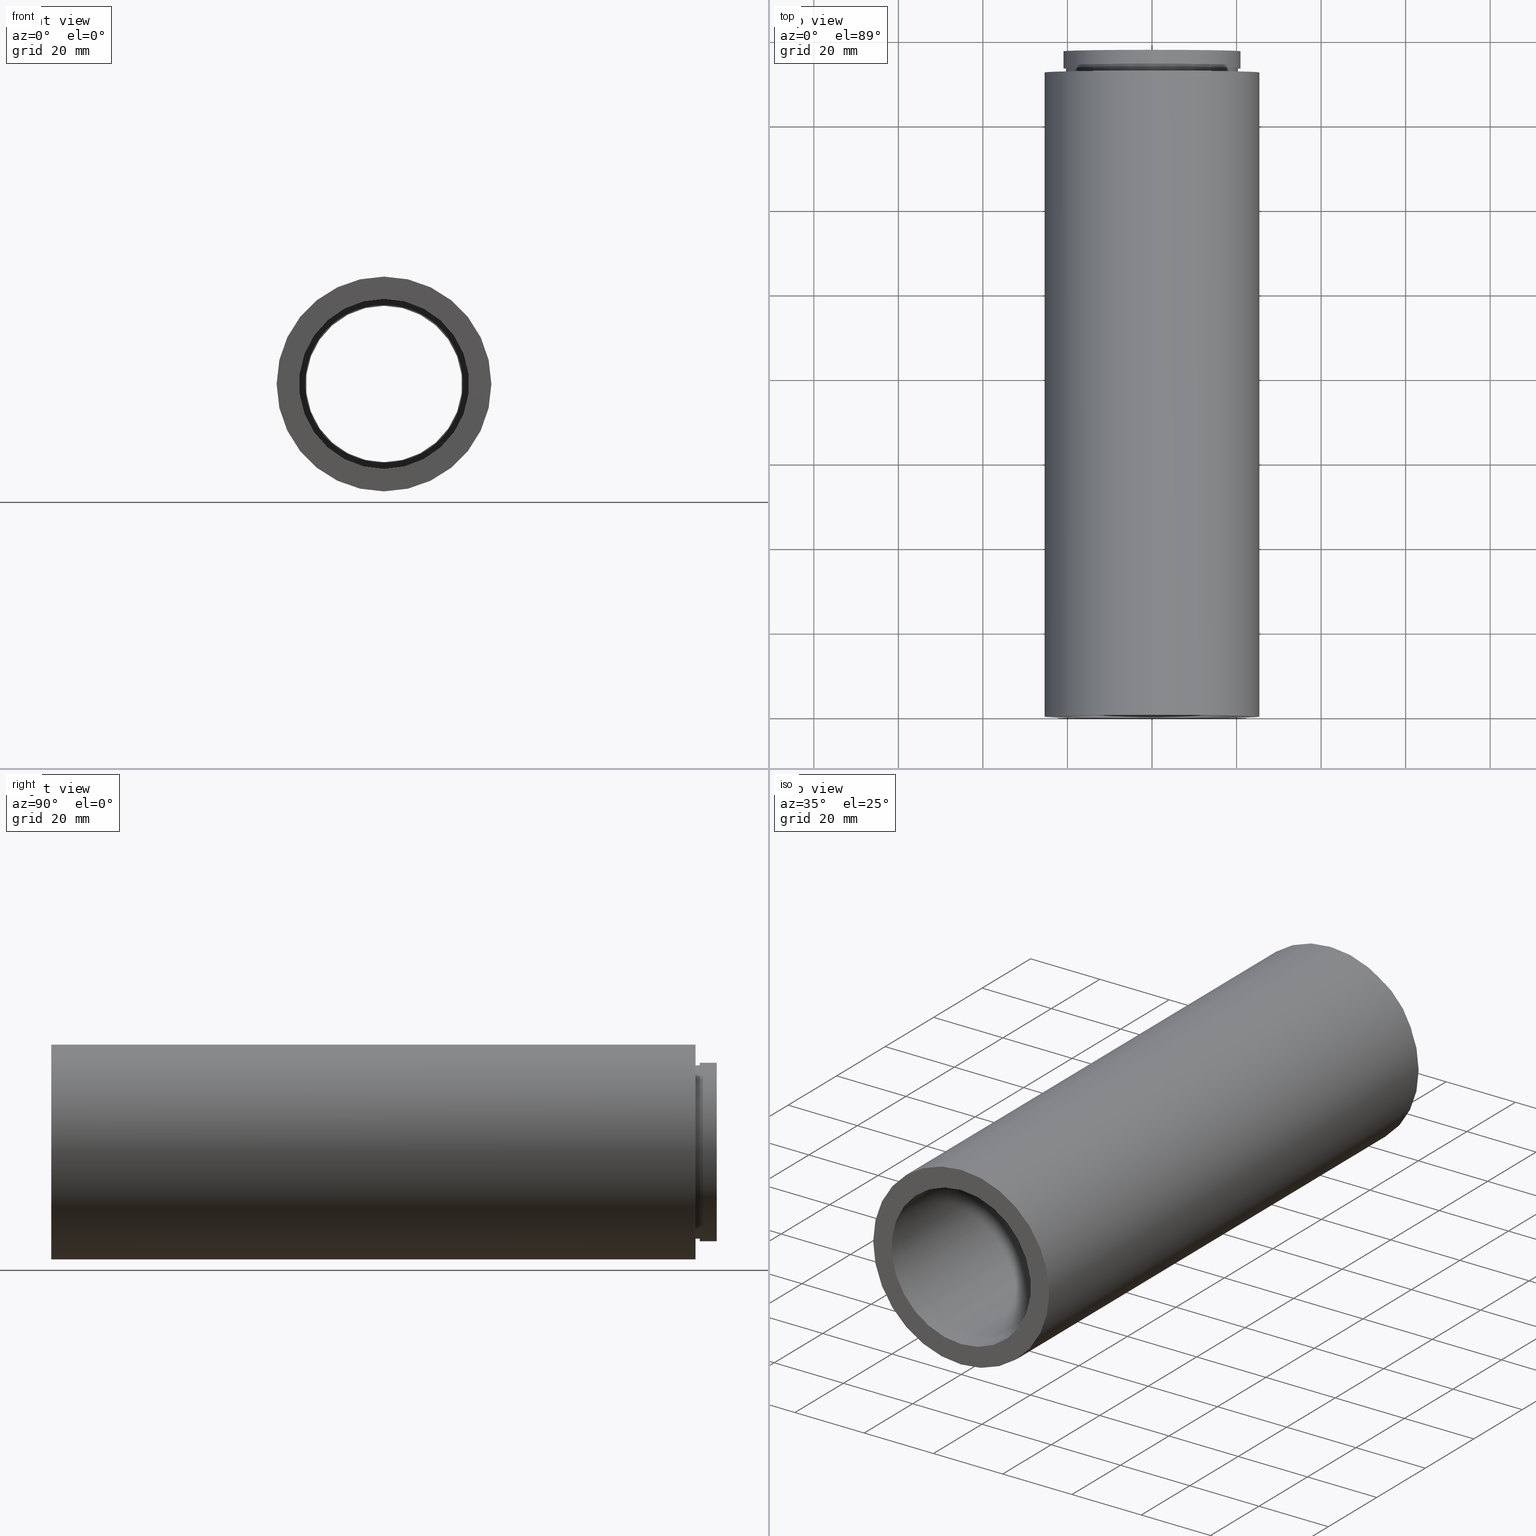
[diagram: canonical four-view strip — front | top / right | iso, engineering-drawing reading convention]
A machine part, canonical four-view strip (front | top / right | iso — engineering-drawing reading convention). The complete STEP part file that produces these views, byte-faithful:
ISO-10303-21;
HEADER;
FILE_DESCRIPTION (( 'STEP AP214' ),
    '1' );
FILE_NAME ('503100.STEP',
    '2019-09-12T01:57:37',
    ( '' ),
    ( '' ),
    'SwSTEP 2.0',
    'SolidWorks 2016',
    '' );
FILE_SCHEMA (( 'AUTOMOTIVE_DESIGN' ));
ENDSEC;

DATA;
#1 =( GEOMETRIC_REPRESENTATION_CONTEXT ( 3 ) GLOBAL_UNCERTAINTY_ASSIGNED_CONTEXT ( ( #450 ) ) GLOBAL_UNIT_ASSIGNED_CONTEXT ( ( #473, #335, #50 ) ) REPRESENTATION_CONTEXT ( 'NONE', 'WORKASPACE' ) );
#2 = EDGE_CURVE ( 'NONE', #559, #291, #601, .T. ) ;
#3 = ORIENTED_EDGE ( 'NONE', *, *, #431, .F. ) ;
#4 = LINE ( 'NONE', #400, #465 ) ;
#5 = APPLICATION_CONTEXT ( 'automotive_design' ) ;
#6 = DIRECTION ( 'NONE',  ( -0.0000000000000000000, 1.000000000000000000, -0.0000000000000000000 ) ) ;
#7 = CARTESIAN_POINT ( 'NONE',  ( 2.584004746200915400E-015, 150.3999999999999800, -21.10000000000000100 ) ) ;
#8 = VERTEX_POINT ( 'NONE', #394 ) ;
#9 = SURFACE_SIDE_STYLE ('',( #451 ) ) ;
#10 = LINE ( 'NONE', #553, #588 ) ;
#11 =( LENGTH_UNIT ( ) NAMED_UNIT ( * ) SI_UNIT ( .MILLI., .METRE. ) );
#12 = CIRCLE ( 'NONE', #461, 20.10000000000001900 ) ;
#13 = CARTESIAN_POINT ( 'NONE',  ( 0.0000000000000000000, 161.3761669434274500, 18.50000000000000000 ) ) ;
#14 = DIRECTION ( 'NONE',  ( 0.0000000000000000000, 0.0000000000000000000, 1.000000000000000000 ) ) ;
#15 = EDGE_CURVE ( 'NONE', #333, #559, #62, .T. ) ;
#16 = CARTESIAN_POINT ( 'NONE',  ( 20.10000000000001900, -1.489618060486579300E-014, 0.0000000000000000000 ) ) ;
#17 = UNCERTAINTY_MEASURE_WITH_UNIT (LENGTH_MEASURE( 1.000000000000000100E-005 ), #237, 'distance_accuracy_value', 'NONE');
#18 = VERTEX_POINT ( 'NONE', #23 ) ;
#19 = DIRECTION ( 'NONE',  ( -0.0000000000000000000, 1.000000000000000000, 0.0000000000000000000 ) ) ;
#20 = ORIENTED_EDGE ( 'NONE', *, *, #236, .T. ) ;
#21 = AXIS2_PLACEMENT_3D ( 'NONE', #410, #226, #97 ) ;
#22 = AXIS2_PLACEMENT_3D ( 'NONE', #146, #469, #193 ) ;
#23 = CARTESIAN_POINT ( 'NONE',  ( 2.461540066286182200E-015, 150.3999999999999800, -20.10000000000001900 ) ) ;
#24 = ORIENTED_EDGE ( 'NONE', *, *, #596, .T. ) ;
#25 = AXIS2_PLACEMENT_3D ( 'NONE', #338, #479, #200 ) ;
#26 = ADVANCED_FACE ( 'NONE', ( #122 ), #611, .T. ) ;
#27 = CIRCLE ( 'NONE', #31, 21.10000000000000100 ) ;
#28 = EDGE_LOOP ( 'NONE', ( #106, #170, #282, #354 ) ) ;
#29 = ADVANCED_FACE ( 'NONE', ( #472 ), #219, .F. ) ;
#30 = FACE_OUTER_BOUND ( 'NONE', #493, .T. ) ;
#31 = AXIS2_PLACEMENT_3D ( 'NONE', #577, #251, #253 ) ;
#32 = DIRECTION ( 'NONE',  ( 0.0000000000000000000, 0.0000000000000000000, 1.000000000000000000 ) ) ;
#33 = STYLED_ITEM ( 'NONE', ( #255 ), #544 ) ;
#34 = ORIENTED_EDGE ( 'NONE', *, *, #596, .F. ) ;
#35 = EDGE_CURVE ( 'NONE', #214, #241, #10, .T. ) ;
#36 = SURFACE_SIDE_STYLE ('',( #520 ) ) ;
#37 = ORIENTED_EDGE ( 'NONE', *, *, #69, .F. ) ;
#38 =( NAMED_UNIT ( * ) SI_UNIT ( $, .STERADIAN. ) SOLID_ANGLE_UNIT ( ) );
#39 = VERTEX_POINT ( 'NONE', #455 ) ;
#40 = LINE ( 'NONE', #153, #408 ) ;
#41 = DIRECTION ( 'NONE',  ( -0.0000000000000000000, 1.000000000000000000, -0.0000000000000000000 ) ) ;
#42 = DIRECTION ( 'NONE',  ( -0.0000000000000000000, 1.000000000000000000, -0.0000000000000000000 ) ) ;
#43 = PLANE ( 'NONE',  #217 ) ;
#44 = CARTESIAN_POINT ( 'NONE',  ( 0.0000000000000000000, -2.775557561562891400E-014, 0.0000000000000000000 ) ) ;
#45 = DIRECTION ( 'NONE',  ( -0.0000000000000000000, 1.000000000000000000, -0.0000000000000000000 ) ) ;
#46 = DIRECTION ( 'NONE',  ( 0.0000000000000000000, -1.000000000000000000, 0.0000000000000000000 ) ) ;
#47 = EDGE_CURVE ( 'NONE', #140, #119, #117, .T. ) ;
#48 = CARTESIAN_POINT ( 'NONE',  ( 0.0000000000000000000, 153.3999999999999800, 0.0000000000000000000 ) ) ;
#49 =( NAMED_UNIT ( * ) PLANE_ANGLE_UNIT ( ) SI_UNIT ( $, .RADIAN. ) );
#50 =( NAMED_UNIT ( * ) SI_UNIT ( $, .STERADIAN. ) SOLID_ANGLE_UNIT ( ) );
#51 = DIRECTION ( 'NONE',  ( -0.0000000000000000000, 1.000000000000000000, -0.0000000000000000000 ) ) ;
#52 = VERTEX_POINT ( 'NONE', #613 ) ;
#53 = DIRECTION ( 'NONE',  ( 0.0000000000000000000, 0.0000000000000000000, 1.000000000000000000 ) ) ;
#54 = COLOUR_RGB ( '',1.000000000000000000, 1.000000000000000000, 1.000000000000000000 ) ;
#55 = AXIS2_PLACEMENT_3D ( 'NONE', #476, #417, #522 ) ;
#56 = CARTESIAN_POINT ( 'NONE',  ( 0.0000000000000000000, 152.3999999999999800, 25.40000000000002000 ) ) ;
#57 = ORIENTED_EDGE ( 'NONE', *, *, #144, .T. ) ;
#58 = MECHANICAL_DESIGN_GEOMETRIC_PRESENTATION_REPRESENTATION (  '', ( #113 ), #411 ) ;
#59 = CYLINDRICAL_SURFACE ( 'NONE', #65, 21.10000000000000100 ) ;
#60 = LINE ( 'NONE', #477, #510 ) ;
#61 = DIRECTION ( 'NONE',  ( -0.0000000000000000000, 1.000000000000000000, -0.0000000000000000000 ) ) ;
#62 = LINE ( 'NONE', #492, #502 ) ;
#63 = UNCERTAINTY_MEASURE_WITH_UNIT (LENGTH_MEASURE( 1.000000000000000100E-005 ), #11, 'distance_accuracy_value', 'NONE');
#64 = DIRECTION ( 'NONE',  ( 0.0000000000000000000, 0.0000000000000000000, 1.000000000000000000 ) ) ;
#65 = AXIS2_PLACEMENT_3D ( 'NONE', #369, #91, #412 ) ;
#66 = CIRCLE ( 'NONE', #294, 21.10000000000000100 ) ;
#67 = DIRECTION ( 'NONE',  ( -0.0000000000000000000, 1.000000000000000000, -0.0000000000000000000 ) ) ;
#68 = PRESENTATION_LAYER_ASSIGNMENT (  '', '', ( #130 ) ) ;
#69 = EDGE_CURVE ( 'NONE', #8, #453, #129, .T. ) ;
#70 = ORIENTED_EDGE ( 'NONE', *, *, #143, .F. ) ;
#71 = CYLINDRICAL_SURFACE ( 'NONE', #441, 20.10000000000001900 ) ;
#72 = SURFACE_STYLE_FILL_AREA ( #264 ) ;
#73 = ORIENTED_EDGE ( 'NONE', *, *, #266, .F. ) ;
#74 = EDGE_LOOP ( 'NONE', ( #37, #202, #272, #257 ) ) ;
#75 = ADVANCED_FACE ( 'NONE', ( #440 ), #549, .T. ) ;
#76 = CIRCLE ( 'NONE', #158, 25.40000000000002000 ) ;
#77 = VECTOR ( 'NONE', #177, 1000.000000000000000 ) ;
#78 = ADVANCED_FACE ( 'NONE', ( #416 ), #409, .F. ) ;
#79 = AXIS2_PLACEMENT_3D ( 'NONE', #446, #174, #262 ) ;
#80 = FILL_AREA_STYLE ('',( #597 ) ) ;
#81 = DIRECTION ( 'NONE',  ( -0.0000000000000000000, 1.000000000000000000, -0.0000000000000000000 ) ) ;
#82 =( LENGTH_UNIT ( ) NAMED_UNIT ( * ) SI_UNIT ( .MILLI., .METRE. ) );
#83 = SURFACE_STYLE_USAGE ( .BOTH. , #36 ) ;
#84 = FACE_BOUND ( 'NONE', #171, .T. ) ;
#85 = CARTESIAN_POINT ( 'NONE',  ( 0.0000000000000000000, 161.3761669434274500, 0.0000000000000000000 ) ) ;
#86 = AXIS2_PLACEMENT_3D ( 'NONE', #232, #196, #152 ) ;
#87 = VERTEX_POINT ( 'NONE', #399 ) ;
#88 = CARTESIAN_POINT ( 'NONE',  ( 0.0000000000000000000, -2.775557561562891400E-014, 0.0000000000000000000 ) ) ;
#89 = FACE_OUTER_BOUND ( 'NONE', #504, .T. ) ;
#90 = ORIENTED_EDGE ( 'NONE', *, *, #389, .T. ) ;
#91 = DIRECTION ( 'NONE',  ( -0.0000000000000000000, 1.000000000000000000, -0.0000000000000000000 ) ) ;
#92 = ORIENTED_EDGE ( 'NONE', *, *, #144, .F. ) ;
#93 = AXIS2_PLACEMENT_3D ( 'NONE', #565, #460, #324 ) ;
#94 =( NAMED_UNIT ( * ) SI_UNIT ( $, .STERADIAN. ) SOLID_ANGLE_UNIT ( ) );
#95 = EDGE_LOOP ( 'NONE', ( #149, #386 ) ) ;
#96 = DIRECTION ( 'NONE',  ( -0.0000000000000000000, 1.000000000000000000, -0.0000000000000000000 ) ) ;
#97 = DIRECTION ( 'NONE',  ( 0.0000000000000000000, 0.0000000000000000000, 1.000000000000000000 ) ) ;
#98 = AXIS2_PLACEMENT_3D ( 'NONE', #533, #344, #296 ) ;
#99 = FILL_AREA_STYLE ('',( #337 ) ) ;
#100 = CARTESIAN_POINT ( 'NONE',  ( 0.0000000000000000000, 161.3761669434274500, 0.0000000000000000000 ) ) ;
#101 = ORIENTED_EDGE ( 'NONE', *, *, #2, .F. ) ;
#102 = APPLICATION_PROTOCOL_DEFINITION ( 'draft international standard', 'automotive_design', 1998, #580 ) ;
#103 = SHAPE_DEFINITION_REPRESENTATION ( #589, #235 ) ;
#104 = EDGE_CURVE ( 'NONE', #258, #609, #304, .T. ) ;
#105 = CARTESIAN_POINT ( 'NONE',  ( 0.0000000000000000000, 153.3999999999999800, 21.10000000000000100 ) ) ;
#106 = ORIENTED_EDGE ( 'NONE', *, *, #463, .T. ) ;
#107 = DIRECTION ( 'NONE',  ( 0.0000000000000000000, 0.0000000000000000000, 1.000000000000000000 ) ) ;
#108 = DIRECTION ( 'NONE',  ( -0.0000000000000000000, 1.000000000000000000, -0.0000000000000000000 ) ) ;
#109 = ORIENTED_EDGE ( 'NONE', *, *, #35, .F. ) ;
#110 = ORIENTED_EDGE ( 'NONE', *, *, #104, .T. ) ;
#111 = FILL_AREA_STYLE_COLOUR ( '', #545 ) ;
#112 = MANIFOLD_SOLID_BREP ( '��ת1', #351 ) ;
#113 = STYLED_ITEM ( 'NONE', ( #413 ), #218 ) ;
#114 = DIRECTION ( 'NONE',  ( 0.0000000000000000000, 0.0000000000000000000, 1.000000000000000000 ) ) ;
#115 = PRESENTATION_STYLE_ASSIGNMENT (( #518 ) ) ;
#116 = PLANE ( 'NONE',  #494 ) ;
#117 = CIRCLE ( 'NONE', #166, 18.50000000000000000 ) ;
#118 = ORIENTED_EDGE ( 'NONE', *, *, #300, .T. ) ;
#119 = VERTEX_POINT ( 'NONE', #310 ) ;
#120 = AXIS2_PLACEMENT_3D ( 'NONE', #334, #45, #283 ) ;
#121 = AXIS2_PLACEMENT_3D ( 'NONE', #378, #96, #619 ) ;
#122 = FACE_OUTER_BOUND ( 'NONE', #572, .T. ) ;
#123 = ADVANCED_FACE ( 'NONE', ( #329 ), #347, .F. ) ;
#124 = CARTESIAN_POINT ( 'NONE',  ( 2.510525938252074500E-015, 161.3761669434274500, -20.50000000000000400 ) ) ;
#125 = CIRCLE ( 'NONE', #318, 21.10000000000000100 ) ;
#126 = AXIS2_PLACEMENT_3D ( 'NONE', #267, #508, #406 ) ;
#127 = CYLINDRICAL_SURFACE ( 'NONE', #507, 25.40000000000002000 ) ;
#128 = SURFACE_SIDE_STYLE ('',( #578 ) ) ;
#129 = LINE ( 'NONE', #363, #77 ) ;
#130 = STYLED_ITEM ( 'NONE', ( #115 ), #235 ) ;
#131 = EDGE_CURVE ( 'NONE', #214, #223, #480, .T. ) ;
#132 = ORIENTED_EDGE ( 'NONE', *, *, #496, .T. ) ;
#133 = CARTESIAN_POINT ( 'NONE',  ( 0.0000000000000000000, 157.3999999999999800, 0.0000000000000000000 ) ) ;
#134 = ORIENTED_EDGE ( 'NONE', *, *, #487, .F. ) ;
#135 = ORIENTED_EDGE ( 'NONE', *, *, #535, .F. ) ;
#136 = PLANE ( 'NONE',  #252 ) ;
#137 = CARTESIAN_POINT ( 'NONE',  ( 0.0000000000000000000, 150.3999999999999800, 0.0000000000000000000 ) ) ;
#138 = FACE_OUTER_BOUND ( 'NONE', #215, .T. ) ;
#139 = CARTESIAN_POINT ( 'NONE',  ( 3.110602869834279600E-015, -2.775557561562891400E-014, -25.40000000000002000 ) ) ;
#140 = VERTEX_POINT ( 'NONE', #414 ) ;
#141 =( NAMED_UNIT ( * ) SI_UNIT ( $, .STERADIAN. ) SOLID_ANGLE_UNIT ( ) );
#142 = CARTESIAN_POINT ( 'NONE',  ( 0.0000000000000000000, 151.3999999999999800, 0.0000000000000000000 ) ) ;
#143 = EDGE_CURVE ( 'NONE', #39, #140, #395, .T. ) ;
#144 = EDGE_CURVE ( 'NONE', #468, #333, #173, .T. ) ;
#145 = CIRCLE ( 'NONE', #586, 21.10000000000000100 ) ;
#146 = CARTESIAN_POINT ( 'NONE',  ( 0.0000000000000000000, 0.0000000000000000000, 0.0000000000000000000 ) ) ;
#147 = DIRECTION ( 'NONE',  ( 0.0000000000000000000, 0.0000000000000000000, 1.000000000000000000 ) ) ;
#148 = CARTESIAN_POINT ( 'NONE',  ( 0.0000000000000000000, 150.3999999999999800, 0.0000000000000000000 ) ) ;
#149 = ORIENTED_EDGE ( 'NONE', *, *, #463, .F. ) ;
#150 = CARTESIAN_POINT ( 'NONE',  ( 0.0000000000000000000, 152.3999999999999800, 20.50000000000000400 ) ) ;
#151 = ORIENTED_EDGE ( 'NONE', *, *, #104, .F. ) ;
#152 = DIRECTION ( 'NONE',  ( 0.0000000000000000000, 0.0000000000000000000, 1.000000000000000000 ) ) ;
#153 = CARTESIAN_POINT ( 'NONE',  ( 0.0000000000000000000, 161.3761669434274500, 20.10000000000001900 ) ) ;
#154 = VERTEX_POINT ( 'NONE', #276 ) ;
#155 = PRODUCT_CONTEXT ( 'NONE', #580, 'mechanical' ) ;
#156 = FACE_OUTER_BOUND ( 'NONE', #270, .T. ) ;
#157 = CARTESIAN_POINT ( 'NONE',  ( 0.0000000000000000000, -2.775557561562891400E-014, 25.40000000000002000 ) ) ;
#158 = AXIS2_PLACEMENT_3D ( 'NONE', #621, #284, #421 ) ;
#159 = FILL_AREA_STYLE ('',( #111 ) ) ;
#160 = ORIENTED_EDGE ( 'NONE', *, *, #236, .F. ) ;
#161 =( NAMED_UNIT ( * ) PLANE_ANGLE_UNIT ( ) SI_UNIT ( $, .RADIAN. ) );
#162 = FACE_OUTER_BOUND ( 'NONE', #353, .T. ) ;
#163 = PRESENTATION_STYLE_ASSIGNMENT (( #183 ) ) ;
#164 = SURFACE_SIDE_STYLE ('',( #342 ) ) ;
#165 = DIRECTION ( 'NONE',  ( 0.0000000000000000000, -1.000000000000000000, 0.0000000000000000000 ) ) ;
#166 = AXIS2_PLACEMENT_3D ( 'NONE', #133, #556, #457 ) ;
#167 = EDGE_LOOP ( 'NONE', ( #110, #198 ) ) ;
#168 = PRODUCT_DEFINITION ( 'δ֪', '', #594, #229 ) ;
#169 = EDGE_CURVE ( 'NONE', #425, #583, #192, .T. ) ;
#170 = ORIENTED_EDGE ( 'NONE', *, *, #69, .T. ) ;
#171 = EDGE_LOOP ( 'NONE', ( #180, #439 ) ) ;
#172 = ADVANCED_FACE ( 'NONE', ( #620, #89 ), #326, .F. ) ;
#173 = CIRCLE ( 'NONE', #385, 25.40000000000002000 ) ;
#174 = DIRECTION ( 'NONE',  ( -0.0000000000000000000, 1.000000000000000000, -0.0000000000000000000 ) ) ;
#175 = ADVANCED_FACE ( 'NONE', ( #138 ), #59, .F. ) ;
#176 = EDGE_CURVE ( 'NONE', #52, #587, #443, .T. ) ;
#177 = DIRECTION ( 'NONE',  ( -0.0000000000000000000, 1.000000000000000000, -0.0000000000000000000 ) ) ;
#178 =( LENGTH_UNIT ( ) NAMED_UNIT ( * ) SI_UNIT ( .MILLI., .METRE. ) );
#179 = DIRECTION ( 'NONE',  ( 0.0000000000000000000, 0.0000000000000000000, 1.000000000000000000 ) ) ;
#180 = ORIENTED_EDGE ( 'NONE', *, *, #535, .T. ) ;
#181 = FILL_AREA_STYLE_COLOUR ( '', #54 ) ;
#182 = PRESENTATION_STYLE_ASSIGNMENT (( #616 ) ) ;
#183 = SURFACE_STYLE_USAGE ( .BOTH. , #128 ) ;
#184 = VECTOR ( 'NONE', #497, 1000.000000000000000 ) ;
#185 = PRESENTATION_LAYER_ASSIGNMENT (  '', '', ( #397 ) ) ;
#186 = DIRECTION ( 'NONE',  ( -0.0000000000000000000, 1.000000000000000000, -0.0000000000000000000 ) ) ;
#187 = DIRECTION ( 'NONE',  ( -0.0000000000000000000, 1.000000000000000000, -0.0000000000000000000 ) ) ;
#188 = VECTOR ( 'NONE', #108, 1000.000000000000000 ) ;
#189 = COLOUR_RGB ( '',1.000000000000000000, 1.000000000000000000, 1.000000000000000000 ) ;
#190 = DIRECTION ( 'NONE',  ( 0.0000000000000000000, -0.0000000000000000000, -1.000000000000000000 ) ) ;
#191 = PRESENTATION_LAYER_ASSIGNMENT (  '', '', ( #327 ) ) ;
#192 = LINE ( 'NONE', #562, #220 ) ;
#193 = DIRECTION ( 'NONE',  ( 1.000000000000000000, 0.0000000000000000000, 0.0000000000000000000 ) ) ;
#194 = DIRECTION ( 'NONE',  ( 0.0000000000000000000, 0.0000000000000000000, 1.000000000000000000 ) ) ;
#195 = AXIS2_PLACEMENT_3D ( 'NONE', #243, #6, #328 ) ;
#196 = DIRECTION ( 'NONE',  ( -0.0000000000000000000, 1.000000000000000000, -0.0000000000000000000 ) ) ;
#197 = DIRECTION ( 'NONE',  ( -0.0000000000000000000, 1.000000000000000000, -0.0000000000000000000 ) ) ;
#198 = ORIENTED_EDGE ( 'NONE', *, *, #607, .T. ) ;
#199 = DIRECTION ( 'NONE',  ( -0.0000000000000000000, 1.000000000000000000, -0.0000000000000000000 ) ) ;
#200 = DIRECTION ( 'NONE',  ( 0.0000000000000000000, 0.0000000000000000000, 1.000000000000000000 ) ) ;
#201 = CARTESIAN_POINT ( 'NONE',  ( 0.0000000000000000000, 161.3761669434274500, 0.0000000000000000000 ) ) ;
#202 = ORIENTED_EDGE ( 'NONE', *, *, #567, .T. ) ;
#203 = ORIENTED_EDGE ( 'NONE', *, *, #332, .F. ) ;
#204 = ORIENTED_EDGE ( 'NONE', *, *, #234, .F. ) ;
#205 = LINE ( 'NONE', #424, #188 ) ;
#206 =( NAMED_UNIT ( * ) SI_UNIT ( $, .STERADIAN. ) SOLID_ANGLE_UNIT ( ) );
#207 = CARTESIAN_POINT ( 'NONE',  ( 3.110602869834279600E-015, 152.3999999999999800, -25.40000000000002000 ) ) ;
#208 = EDGE_CURVE ( 'NONE', #583, #453, #27, .T. ) ;
#209 = EDGE_CURVE ( 'NONE', #341, #248, #225, .T. ) ;
#210 = CARTESIAN_POINT ( 'NONE',  ( 0.0000000000000000000, 157.3999999999999800, 0.0000000000000000000 ) ) ;
#211 = PRESENTATION_STYLE_ASSIGNMENT (( #83 ) ) ;
#212 = ORIENTED_EDGE ( 'NONE', *, *, #234, .T. ) ;
#213 = LINE ( 'NONE', #349, #490 ) ;
#214 = VERTEX_POINT ( 'NONE', #7 ) ;
#215 = EDGE_LOOP ( 'NONE', ( #109, #527, #584, #560 ) ) ;
#216 = DIRECTION ( 'NONE',  ( -0.0000000000000000000, 1.000000000000000000, -0.0000000000000000000 ) ) ;
#217 = AXIS2_PLACEMENT_3D ( 'NONE', #624, #571, #147 ) ;
#218 = ADVANCED_FACE ( 'NONE', ( #295 ), #372, .T. ) ;
#219 = CYLINDRICAL_SURFACE ( 'NONE', #574, 20.10000000000001900 ) ;
#220 = VECTOR ( 'NONE', #513, 1000.000000000000000 ) ;
#221 = MECHANICAL_DESIGN_GEOMETRIC_PRESENTATION_REPRESENTATION (  '', ( #327 ), #437 ) ;
#222 = CIRCLE ( 'NONE', #93, 21.10000000000000100 ) ;
#223 = VERTEX_POINT ( 'NONE', #376 ) ;
#224 =( NAMED_UNIT ( * ) SI_UNIT ( $, .STERADIAN. ) SOLID_ANGLE_UNIT ( ) );
#225 = CIRCLE ( 'NONE', #98, 20.50000000000000400 ) ;
#226 = DIRECTION ( 'NONE',  ( -0.0000000000000000000, 1.000000000000000000, -0.0000000000000000000 ) ) ;
#227 = ORIENTED_EDGE ( 'NONE', *, *, #47, .F. ) ;
#228 =( LENGTH_UNIT ( ) NAMED_UNIT ( * ) SI_UNIT ( .MILLI., .METRE. ) );
#229 = PRODUCT_DEFINITION_CONTEXT ( 'detailed design', #5, 'design' ) ;
#230 = DIRECTION ( 'NONE',  ( -0.0000000000000000000, 1.000000000000000000, -0.0000000000000000000 ) ) ;
#231 = FACE_OUTER_BOUND ( 'NONE', #95, .T. ) ;
#232 = CARTESIAN_POINT ( 'NONE',  ( 0.0000000000000000000, 161.3761669434274500, 0.0000000000000000000 ) ) ;
#233 = DIRECTION ( 'NONE',  ( 0.0000000000000000000, 0.0000000000000000000, 1.000000000000000000 ) ) ;
#234 = EDGE_CURVE ( 'NONE', #119, #140, #592, .T. ) ;
#235 = ADVANCED_BREP_SHAPE_REPRESENTATION ( '503100', ( #112, #22 ), #579 ) ;
#236 = EDGE_CURVE ( 'NONE', #18, #87, #12, .T. ) ;
#237 =( LENGTH_UNIT ( ) NAMED_UNIT ( * ) SI_UNIT ( .MILLI., .METRE. ) );
#238 = CIRCLE ( 'NONE', #541, 18.50000000000000000 ) ;
#239 = SURFACE_STYLE_USAGE ( .BOTH. , #287 ) ;
#240 = DIRECTION ( 'NONE',  ( -0.0000000000000000000, 1.000000000000000000, -0.0000000000000000000 ) ) ;
#241 = VERTEX_POINT ( 'NONE', #530 ) ;
#242 =( NAMED_UNIT ( * ) PLANE_ANGLE_UNIT ( ) SI_UNIT ( $, .RADIAN. ) );
#243 = CARTESIAN_POINT ( 'NONE',  ( 0.0000000000000000000, 153.3999999999999800, 0.0000000000000000000 ) ) ;
#244 = COLOUR_RGB ( '',1.000000000000000000, 1.000000000000000000, 1.000000000000000000 ) ;
#245 = ORIENTED_EDGE ( 'NONE', *, *, #176, .T. ) ;
#246 = CARTESIAN_POINT ( 'NONE',  ( 0.0000000000000000000, -2.775557561562891400E-014, 20.10000000000001900 ) ) ;
#247 = MECHANICAL_DESIGN_GEOMETRIC_PRESENTATION_REPRESENTATION (  '', ( #33 ), #1 ) ;
#248 = VERTEX_POINT ( 'NONE', #150 ) ;
#249 = DIRECTION ( 'NONE',  ( -0.0000000000000000000, 1.000000000000000000, -0.0000000000000000000 ) ) ;
#250 = COLOUR_RGB ( '',1.000000000000000000, 1.000000000000000000, 1.000000000000000000 ) ;
#251 = DIRECTION ( 'NONE',  ( -0.0000000000000000000, 1.000000000000000000, -0.0000000000000000000 ) ) ;
#252 = AXIS2_PLACEMENT_3D ( 'NONE', #418, #46, #290 ) ;
#253 = DIRECTION ( 'NONE',  ( 0.0000000000000000000, 0.0000000000000000000, 1.000000000000000000 ) ) ;
#254 = VECTOR ( 'NONE', #61, 1000.000000000000000 ) ;
#255 = PRESENTATION_STYLE_ASSIGNMENT (( #239 ) ) ;
#256 = MECHANICAL_DESIGN_GEOMETRIC_PRESENTATION_REPRESENTATION (  '', ( #298 ), #539 ) ;
#257 = ORIENTED_EDGE ( 'NONE', *, *, #301, .F. ) ;
#258 = VERTEX_POINT ( 'NONE', #246 ) ;
#259 = AXIS2_PLACEMENT_3D ( 'NONE', #278, #186, #470 ) ;
#260 = ORIENTED_EDGE ( 'NONE', *, *, #452, .T. ) ;
#261 = UNCERTAINTY_MEASURE_WITH_UNIT (LENGTH_MEASURE( 1.000000000000000100E-005 ), #228, 'distance_accuracy_value', 'NONE');
#262 = DIRECTION ( 'NONE',  ( 0.0000000000000000000, 0.0000000000000000000, 1.000000000000000000 ) ) ;
#263 = ADVANCED_FACE ( 'NONE', ( #305, #383 ), #384, .F. ) ;
#264 = FILL_AREA_STYLE ('',( #181 ) ) ;
#265 = EDGE_LOOP ( 'NONE', ( #319, #445, #506, #509 ) ) ;
#266 = EDGE_CURVE ( 'NONE', #248, #341, #435, .T. ) ;
#267 = CARTESIAN_POINT ( 'NONE',  ( 0.0000000000000000000, 161.3761669434274500, 0.0000000000000000000 ) ) ;
#268 = FILL_AREA_STYLE_COLOUR ( '', #244 ) ;
#269 = SURFACE_SIDE_STYLE ('',( #617 ) ) ;
#270 = EDGE_LOOP ( 'NONE', ( #203, #356 ) ) ;
#271 = DIRECTION ( 'NONE',  ( -0.0000000000000000000, 1.000000000000000000, -0.0000000000000000000 ) ) ;
#272 = ORIENTED_EDGE ( 'NONE', *, *, #169, .T. ) ;
#273 =( LENGTH_UNIT ( ) NAMED_UNIT ( * ) SI_UNIT ( .MILLI., .METRE. ) );
#274 = EDGE_LOOP ( 'NONE', ( #260, #391 ) ) ;
#275 = SURFACE_STYLE_FILL_AREA ( #330 ) ;
#276 = CARTESIAN_POINT ( 'NONE',  ( 0.0000000000000000000, 151.3999999999999800, 21.10000000000000100 ) ) ;
#277 = AXIS2_PLACEMENT_3D ( 'NONE', #142, #523, #373 ) ;
#278 = CARTESIAN_POINT ( 'NONE',  ( 0.0000000000000000000, 150.3999999999999800, 0.0000000000000000000 ) ) ;
#279 = DIRECTION ( 'NONE',  ( 0.0000000000000000000, 0.0000000000000000000, 1.000000000000000000 ) ) ;
#280 = ORIENTED_EDGE ( 'NONE', *, *, #208, .T. ) ;
#281 = CIRCLE ( 'NONE', #277, 18.50000000000000000 ) ;
#282 = ORIENTED_EDGE ( 'NONE', *, *, #208, .F. ) ;
#283 = DIRECTION ( 'NONE',  ( 0.0000000000000000000, 0.0000000000000000000, 1.000000000000000000 ) ) ;
#284 = DIRECTION ( 'NONE',  ( -0.0000000000000000000, 1.000000000000000000, -0.0000000000000000000 ) ) ;
#285 = AXIS2_PLACEMENT_3D ( 'NONE', #550, #505, #367 ) ;
#286 = SURFACE_SIDE_STYLE ('',( #361 ) ) ;
#287 = SURFACE_SIDE_STYLE ('',( #275 ) ) ;
#288 = ORIENTED_EDGE ( 'NONE', *, *, #15, .T. ) ;
#289 = AXIS2_PLACEMENT_3D ( 'NONE', #570, #339, #107 ) ;
#290 = DIRECTION ( 'NONE',  ( 0.0000000000000000000, -0.0000000000000000000, -1.000000000000000000 ) ) ;
#291 = VERTEX_POINT ( 'NONE', #207 ) ;
#292 =( NAMED_UNIT ( * ) SI_UNIT ( $, .STERADIAN. ) SOLID_ANGLE_UNIT ( ) );
#293 = CIRCLE ( 'NONE', #195, 21.10000000000000100 ) ;
#294 = AXIS2_PLACEMENT_3D ( 'NONE', #297, #381, #14 ) ;
#295 = FACE_OUTER_BOUND ( 'NONE', #28, .T. ) ;
#296 = DIRECTION ( 'NONE',  ( 0.0000000000000000000, 0.0000000000000000000, 1.000000000000000000 ) ) ;
#297 = CARTESIAN_POINT ( 'NONE',  ( 0.0000000000000000000, 151.3999999999999800, 0.0000000000000000000 ) ) ;
#298 = STYLED_ITEM ( 'NONE', ( #182 ), #112 ) ;
#299 = DIRECTION ( 'NONE',  ( -0.0000000000000000000, 1.000000000000000000, -0.0000000000000000000 ) ) ;
#300 = EDGE_CURVE ( 'NONE', #573, #119, #599, .T. ) ;
#301 = EDGE_CURVE ( 'NONE', #453, #583, #125, .T. ) ;
#302 = ORIENTED_EDGE ( 'NONE', *, *, #359, .T. ) ;
#303 = CIRCLE ( 'NONE', #121, 25.40000000000002000 ) ;
#304 = CIRCLE ( 'NONE', #485, 20.10000000000001900 ) ;
#305 = FACE_OUTER_BOUND ( 'NONE', #557, .T. ) ;
#306 = ADVANCED_FACE ( 'NONE', ( #231, #458 ), #538, .F. ) ;
#307 = AXIS2_PLACEMENT_3D ( 'NONE', #16, #348, #346 ) ;
#308 = CYLINDRICAL_SURFACE ( 'NONE', #55, 20.50000000000000400 ) ;
#309 = ADVANCED_FACE ( 'NONE', ( #312, #321 ), #116, .F. ) ;
#310 = CARTESIAN_POINT ( 'NONE',  ( 0.0000000000000000000, 157.3999999999999800, 18.50000000000000000 ) ) ;
#311 =( NAMED_UNIT ( * ) PLANE_ANGLE_UNIT ( ) SI_UNIT ( $, .RADIAN. ) );
#312 = FACE_BOUND ( 'NONE', #315, .T. ) ;
#313 = PRESENTATION_LAYER_ASSIGNMENT (  '', '', ( #415 ) ) ;
#314 = CARTESIAN_POINT ( 'NONE',  ( 0.0000000000000000000, 161.3761669434274500, 0.0000000000000000000 ) ) ;
#315 = EDGE_LOOP ( 'NONE', ( #204, #227 ) ) ;
#316 = MECHANICAL_DESIGN_GEOMETRIC_PRESENTATION_REPRESENTATION (  '', ( #130 ), #475 ) ;
#317 = FILL_AREA_STYLE_COLOUR ( '', #564 ) ;
#318 = AXIS2_PLACEMENT_3D ( 'NONE', #210, #67, #390 ) ;
#319 = ORIENTED_EDGE ( 'NONE', *, *, #131, .F. ) ;
#320 =( NAMED_UNIT ( * ) PLANE_ANGLE_UNIT ( ) SI_UNIT ( $, .RADIAN. ) );
#321 = FACE_OUTER_BOUND ( 'NONE', #516, .T. ) ;
#322 = ORIENTED_EDGE ( 'NONE', *, *, #496, .F. ) ;
#323 = ORIENTED_EDGE ( 'NONE', *, *, #301, .T. ) ;
#324 = DIRECTION ( 'NONE',  ( 0.0000000000000000000, 0.0000000000000000000, 1.000000000000000000 ) ) ;
#325 = UNCERTAINTY_MEASURE_WITH_UNIT (LENGTH_MEASURE( 1.000000000000000100E-005 ), #590, 'distance_accuracy_value', 'NONE');
#326 = PLANE ( 'NONE',  #591 ) ;
#327 = STYLED_ITEM ( 'NONE', ( #211 ), #78 ) ;
#328 = DIRECTION ( 'NONE',  ( 0.0000000000000000000, 0.0000000000000000000, 1.000000000000000000 ) ) ;
#329 = FACE_OUTER_BOUND ( 'NONE', #265, .T. ) ;
#330 = FILL_AREA_STYLE ('',( #576 ) ) ;
#331 = EDGE_CURVE ( 'NONE', #609, #18, #213, .T. ) ;
#332 = EDGE_CURVE ( 'NONE', #154, #241, #66, .T. ) ;
#333 = VERTEX_POINT ( 'NONE', #157 ) ;
#334 = CARTESIAN_POINT ( 'NONE',  ( 0.0000000000000000000, -2.775557561562891400E-014, 0.0000000000000000000 ) ) ;
#335 =( NAMED_UNIT ( * ) PLANE_ANGLE_UNIT ( ) SI_UNIT ( $, .RADIAN. ) );
#336 = CARTESIAN_POINT ( 'NONE',  ( 0.0000000000000000000, 161.3761669434274500, 0.0000000000000000000 ) ) ;
#337 = FILL_AREA_STYLE_COLOUR ( '', #536 ) ;
#338 = CARTESIAN_POINT ( 'NONE',  ( 0.0000000000000000000, 157.3999999999999800, 0.0000000000000000000 ) ) ;
#339 = DIRECTION ( 'NONE',  ( -0.0000000000000000000, 1.000000000000000000, -0.0000000000000000000 ) ) ;
#340 = DIRECTION ( 'NONE',  ( 0.0000000000000000000, 0.0000000000000000000, 1.000000000000000000 ) ) ;
#341 = VERTEX_POINT ( 'NONE', #434 ) ;
#342 = SURFACE_STYLE_FILL_AREA ( #548 ) ;
#343 = EDGE_LOOP ( 'NONE', ( #73, #377 ) ) ;
#344 = DIRECTION ( 'NONE',  ( -0.0000000000000000000, 1.000000000000000000, -0.0000000000000000000 ) ) ;
#345 = PRESENTATION_LAYER_ASSIGNMENT (  '', '', ( #113 ) ) ;
#346 = DIRECTION ( 'NONE',  ( 0.0000000000000000000, 0.0000000000000000000, 1.000000000000000000 ) ) ;
#347 = CYLINDRICAL_SURFACE ( 'NONE', #21, 21.10000000000000100 ) ;
#348 = DIRECTION ( 'NONE',  ( -0.0000000000000000000, 1.000000000000000000, 0.0000000000000000000 ) ) ;
#349 = CARTESIAN_POINT ( 'NONE',  ( 2.461540066286182200E-015, 161.3761669434274500, -20.10000000000001900 ) ) ;
#350 = UNCERTAINTY_MEASURE_WITH_UNIT (LENGTH_MEASURE( 1.000000000000000100E-005 ), #178, 'distance_accuracy_value', 'NONE');
#351 = CLOSED_SHELL ( 'NONE', ( #29, #123, #396, #218, #600, #546, #263, #602, #172, #26, #306, #75, #309, #78, #447, #175, #495, #544 ) ) ;
#352 = AXIS2_PLACEMENT_3D ( 'NONE', #314, #615, #32 ) ;
#353 = EDGE_LOOP ( 'NONE', ( #537, #302, #101, #374 ) ) ;
#354 = ORIENTED_EDGE ( 'NONE', *, *, #169, .F. ) ;
#355 = VECTOR ( 'NONE', #230, 1000.000000000000000 ) ;
#356 = ORIENTED_EDGE ( 'NONE', *, *, #420, .F. ) ;
#357 =( GEOMETRIC_REPRESENTATION_CONTEXT ( 3 ) GLOBAL_UNCERTAINTY_ASSIGNED_CONTEXT ( ( #568 ) ) GLOBAL_UNIT_ASSIGNED_CONTEXT ( ( #273, #311, #224 ) ) REPRESENTATION_CONTEXT ( 'NONE', 'WORKASPACE' ) );
#358 = FACE_OUTER_BOUND ( 'NONE', #525, .T. ) ;
#359 = EDGE_CURVE ( 'NONE', #468, #291, #4, .T. ) ;
#360 =( NAMED_UNIT ( * ) PLANE_ANGLE_UNIT ( ) SI_UNIT ( $, .RADIAN. ) );
#361 = SURFACE_STYLE_FILL_AREA ( #99 ) ;
#362 = PRESENTATION_STYLE_ASSIGNMENT (( #605 ) ) ;
#363 = CARTESIAN_POINT ( 'NONE',  ( 2.584004746200915400E-015, 161.3761669434274500, -21.10000000000000100 ) ) ;
#364 = ORIENTED_EDGE ( 'NONE', *, *, #176, .F. ) ;
#365 =( NAMED_UNIT ( * ) PLANE_ANGLE_UNIT ( ) SI_UNIT ( $, .RADIAN. ) );
#366 = LINE ( 'NONE', #124, #184 ) ;
#367 = DIRECTION ( 'NONE',  ( 0.0000000000000000000, 0.0000000000000000000, 1.000000000000000000 ) ) ;
#368 = EDGE_LOOP ( 'NONE', ( #442, #598, #20, #498 ) ) ;
#369 = CARTESIAN_POINT ( 'NONE',  ( 0.0000000000000000000, 161.3761669434274500, 0.0000000000000000000 ) ) ;
#370 = AXIS2_PLACEMENT_3D ( 'NONE', #433, #299, #114 ) ;
#371 = CARTESIAN_POINT ( 'NONE',  ( 2.584004746200915400E-015, 157.3999999999999800, -21.10000000000000100 ) ) ;
#372 = CYLINDRICAL_SURFACE ( 'NONE', #430, 21.10000000000000100 ) ;
#373 = DIRECTION ( 'NONE',  ( 0.0000000000000000000, 0.0000000000000000000, 1.000000000000000000 ) ) ;
#374 = ORIENTED_EDGE ( 'NONE', *, *, #15, .F. ) ;
#375 = MECHANICAL_DESIGN_GEOMETRIC_PRESENTATION_REPRESENTATION (  '', ( #415 ), #503 ) ;
#376 = CARTESIAN_POINT ( 'NONE',  ( 0.0000000000000000000, 150.3999999999999800, 21.10000000000000100 ) ) ;
#377 = ORIENTED_EDGE ( 'NONE', *, *, #209, .F. ) ;
#378 = CARTESIAN_POINT ( 'NONE',  ( 0.0000000000000000000, -2.775557561562891400E-014, 0.0000000000000000000 ) ) ;
#379 = ORIENTED_EDGE ( 'NONE', *, *, #300, .F. ) ;
#380 = DIRECTION ( 'NONE',  ( -0.0000000000000000000, 1.000000000000000000, -0.0000000000000000000 ) ) ;
#381 = DIRECTION ( 'NONE',  ( -0.0000000000000000000, 1.000000000000000000, -0.0000000000000000000 ) ) ;
#382 = FACE_OUTER_BOUND ( 'NONE', #393, .T. ) ;
#383 = FACE_BOUND ( 'NONE', #167, .T. ) ;
#384 = PLANE ( 'NONE',  #307 ) ;
#385 = AXIS2_PLACEMENT_3D ( 'NONE', #44, #42, #558 ) ;
#386 = ORIENTED_EDGE ( 'NONE', *, *, #567, .F. ) ;
#387 = CIRCLE ( 'NONE', #120, 20.10000000000001900 ) ;
#388 = DIRECTION ( 'NONE',  ( -0.0000000000000000000, 1.000000000000000000, -0.0000000000000000000 ) ) ;
#389 = EDGE_CURVE ( 'NONE', #341, #587, #366, .T. ) ;
#390 = DIRECTION ( 'NONE',  ( 0.0000000000000000000, 0.0000000000000000000, 1.000000000000000000 ) ) ;
#391 = ORIENTED_EDGE ( 'NONE', *, *, #131, .T. ) ;
#392 = EDGE_LOOP ( 'NONE', ( #245, #438 ) ) ;
#393 = EDGE_LOOP ( 'NONE', ( #529, #151, #614, #540 ) ) ;
#394 = CARTESIAN_POINT ( 'NONE',  ( 2.584004746200915400E-015, 153.3999999999999800, -21.10000000000000100 ) ) ;
#395 = LINE ( 'NONE', #514, #355 ) ;
#396 = ADVANCED_FACE ( 'NONE', ( #358 ), #542, .F. ) ;
#397 = STYLED_ITEM ( 'NONE', ( #608 ), #396 ) ;
#398 = COLOUR_RGB ( '',1.000000000000000000, 1.000000000000000000, 1.000000000000000000 ) ;
#399 = CARTESIAN_POINT ( 'NONE',  ( 0.0000000000000000000, 150.3999999999999800, 20.10000000000001900 ) ) ;
#400 = CARTESIAN_POINT ( 'NONE',  ( 3.110602869834279600E-015, 161.3761669434274500, -25.40000000000002000 ) ) ;
#401 = SURFACE_SIDE_STYLE ('',( #72 ) ) ;
#402 = UNCERTAINTY_MEASURE_WITH_UNIT (LENGTH_MEASURE( 1.000000000000000100E-005 ), #82, 'distance_accuracy_value', 'NONE');
#403 = ORIENTED_EDGE ( 'NONE', *, *, #524, .F. ) ;
#404 = PRESENTATION_LAYER_ASSIGNMENT (  '', '', ( #448 ) ) ;
#405 =( NAMED_UNIT ( * ) SI_UNIT ( $, .STERADIAN. ) SOLID_ANGLE_UNIT ( ) );
#406 = DIRECTION ( 'NONE',  ( 0.0000000000000000000, 0.0000000000000000000, 1.000000000000000000 ) ) ;
#407 = ORIENTED_EDGE ( 'NONE', *, *, #359, .F. ) ;
#408 = VECTOR ( 'NONE', #426, 1000.000000000000000 ) ;
#409 = CYLINDRICAL_SURFACE ( 'NONE', #285, 18.50000000000000000 ) ;
#410 = CARTESIAN_POINT ( 'NONE',  ( 0.0000000000000000000, 161.3761669434274500, 0.0000000000000000000 ) ) ;
#411 =( GEOMETRIC_REPRESENTATION_CONTEXT ( 3 ) GLOBAL_UNCERTAINTY_ASSIGNED_CONTEXT ( ( #63 ) ) GLOBAL_UNIT_ASSIGNED_CONTEXT ( ( #11, #484, #206 ) ) REPRESENTATION_CONTEXT ( 'NONE', 'WORKASPACE' ) );
#412 = DIRECTION ( 'NONE',  ( 0.0000000000000000000, 0.0000000000000000000, 1.000000000000000000 ) ) ;
#413 = PRESENTATION_STYLE_ASSIGNMENT (( #428 ) ) ;
#414 = CARTESIAN_POINT ( 'NONE',  ( 2.265596578422603400E-015, 157.3999999999999800, -18.50000000000000000 ) ) ;
#415 = STYLED_ITEM ( 'NONE', ( #163 ), #29 ) ;
#416 = FACE_OUTER_BOUND ( 'NONE', #534, .T. ) ;
#417 = DIRECTION ( 'NONE',  ( -0.0000000000000000000, 1.000000000000000000, -0.0000000000000000000 ) ) ;
#418 = CARTESIAN_POINT ( 'NONE',  ( 20.10000000000001900, 150.3999999999999800, 0.0000000000000000000 ) ) ;
#419 = CARTESIAN_POINT ( 'NONE',  ( 0.0000000000000000000, 151.3999999999999800, 0.0000000000000000000 ) ) ;
#420 = EDGE_CURVE ( 'NONE', #241, #154, #222, .T. ) ;
#421 = DIRECTION ( 'NONE',  ( 0.0000000000000000000, 0.0000000000000000000, 1.000000000000000000 ) ) ;
#422 = ORIENTED_EDGE ( 'NONE', *, *, #604, .F. ) ;
#423 = CIRCLE ( 'NONE', #259, 20.10000000000001900 ) ;
#424 = CARTESIAN_POINT ( 'NONE',  ( 0.0000000000000000000, 161.3761669434274500, 21.10000000000000100 ) ) ;
#425 = VERTEX_POINT ( 'NONE', #105 ) ;
#426 = DIRECTION ( 'NONE',  ( -0.0000000000000000000, 1.000000000000000000, -0.0000000000000000000 ) ) ;
#427 = EDGE_LOOP ( 'NONE', ( #3, #160 ) ) ;
#428 = SURFACE_STYLE_USAGE ( .BOTH. , #9 ) ;
#429 = UNCERTAINTY_MEASURE_WITH_UNIT (LENGTH_MEASURE( 1.000000000000000100E-005 ), #466, 'distance_accuracy_value', 'NONE');
#430 = AXIS2_PLACEMENT_3D ( 'NONE', #336, #482, #53 ) ;
#431 = EDGE_CURVE ( 'NONE', #87, #18, #423, .T. ) ;
#432 = SURFACE_STYLE_USAGE ( .BOTH. , #164 ) ;
#433 = CARTESIAN_POINT ( 'NONE',  ( 0.0000000000000000000, 152.3999999999999800, 0.0000000000000000000 ) ) ;
#434 = CARTESIAN_POINT ( 'NONE',  ( 2.510525938252074500E-015, 152.3999999999999800, -20.50000000000000400 ) ) ;
#435 = CIRCLE ( 'NONE', #370, 20.50000000000000400 ) ;
#436 = DIRECTION ( 'NONE',  ( 0.0000000000000000000, -0.0000000000000000000, -1.000000000000000000 ) ) ;
#437 =( GEOMETRIC_REPRESENTATION_CONTEXT ( 3 ) GLOBAL_UNCERTAINTY_ASSIGNED_CONTEXT ( ( #402 ) ) GLOBAL_UNIT_ASSIGNED_CONTEXT ( ( #82, #365, #405 ) ) REPRESENTATION_CONTEXT ( 'NONE', 'WORKASPACE' ) );
#438 = ORIENTED_EDGE ( 'NONE', *, *, #604, .T. ) ;
#439 = ORIENTED_EDGE ( 'NONE', *, *, #524, .T. ) ;
#440 = FACE_OUTER_BOUND ( 'NONE', #74, .T. ) ;
#441 = AXIS2_PLACEMENT_3D ( 'NONE', #100, #197, #233 ) ;
#442 = ORIENTED_EDGE ( 'NONE', *, *, #607, .F. ) ;
#443 = CIRCLE ( 'NONE', #622, 20.50000000000000000 ) ;
#444 = ORIENTED_EDGE ( 'NONE', *, *, #209, .T. ) ;
#445 = ORIENTED_EDGE ( 'NONE', *, *, #35, .T. ) ;
#446 = CARTESIAN_POINT ( 'NONE',  ( 0.0000000000000000000, 152.3999999999999800, 0.0000000000000000000 ) ) ;
#447 = ADVANCED_FACE ( 'NONE', ( #156, #84 ), #43, .F. ) ;
#448 = STYLED_ITEM ( 'NONE', ( #362 ), #75 ) ;
#449 = DIRECTION ( 'NONE',  ( -0.0000000000000000000, 1.000000000000000000, -0.0000000000000000000 ) ) ;
#450 = UNCERTAINTY_MEASURE_WITH_UNIT (LENGTH_MEASURE( 1.000000000000000100E-005 ), #473, 'distance_accuracy_value', 'NONE');
#451 = SURFACE_STYLE_FILL_AREA ( #159 ) ;
#452 = EDGE_CURVE ( 'NONE', #223, #214, #501, .T. ) ;
#453 = VERTEX_POINT ( 'NONE', #371 ) ;
#454 = FILL_AREA_STYLE ('',( #511 ) ) ;
#455 = CARTESIAN_POINT ( 'NONE',  ( 2.265596578422603400E-015, 151.3999999999999800, -18.50000000000000000 ) ) ;
#456 = ORIENTED_EDGE ( 'NONE', *, *, #2, .T. ) ;
#457 = DIRECTION ( 'NONE',  ( 0.0000000000000000000, 0.0000000000000000000, 1.000000000000000000 ) ) ;
#458 = FACE_BOUND ( 'NONE', #392, .T. ) ;
#459 = DIRECTION ( 'NONE',  ( -0.0000000000000000000, 1.000000000000000000, -0.0000000000000000000 ) ) ;
#460 = DIRECTION ( 'NONE',  ( -0.0000000000000000000, 1.000000000000000000, -0.0000000000000000000 ) ) ;
#461 = AXIS2_PLACEMENT_3D ( 'NONE', #582, #380, #64 ) ;
#462 = DIRECTION ( 'NONE',  ( 0.0000000000000000000, 0.0000000000000000000, 1.000000000000000000 ) ) ;
#463 = EDGE_CURVE ( 'NONE', #425, #8, #145, .T. ) ;
#464 = DIRECTION ( 'NONE',  ( 0.0000000000000000000, -1.000000000000000000, 0.0000000000000000000 ) ) ;
#465 = VECTOR ( 'NONE', #81, 1000.000000000000000 ) ;
#466 =( LENGTH_UNIT ( ) NAMED_UNIT ( * ) SI_UNIT ( .MILLI., .METRE. ) );
#467 = PRODUCT ( '503100', '503100', '', ( #155 ) ) ;
#468 = VERTEX_POINT ( 'NONE', #139 ) ;
#469 = DIRECTION ( 'NONE',  ( 0.0000000000000000000, 0.0000000000000000000, 1.000000000000000000 ) ) ;
#470 = DIRECTION ( 'NONE',  ( 0.0000000000000000000, 0.0000000000000000000, 1.000000000000000000 ) ) ;
#471 = PRESENTATION_LAYER_ASSIGNMENT (  '', '', ( #298 ) ) ;
#472 = FACE_OUTER_BOUND ( 'NONE', #368, .T. ) ;
#473 =( LENGTH_UNIT ( ) NAMED_UNIT ( * ) SI_UNIT ( .MILLI., .METRE. ) );
#474 =( NAMED_UNIT ( * ) SI_UNIT ( $, .STERADIAN. ) SOLID_ANGLE_UNIT ( ) );
#475 =( GEOMETRIC_REPRESENTATION_CONTEXT ( 3 ) GLOBAL_UNCERTAINTY_ASSIGNED_CONTEXT ( ( #17 ) ) GLOBAL_UNIT_ASSIGNED_CONTEXT ( ( #237, #49, #292 ) ) REPRESENTATION_CONTEXT ( 'NONE', 'WORKASPACE' ) );
#476 = CARTESIAN_POINT ( 'NONE',  ( 0.0000000000000000000, 161.3761669434274500, 0.0000000000000000000 ) ) ;
#477 = CARTESIAN_POINT ( 'NONE',  ( 0.0000000000000000000, 161.3761669434274500, 20.50000000000000400 ) ) ;
#478 = ORIENTED_EDGE ( 'NONE', *, *, #47, .T. ) ;
#479 = DIRECTION ( 'NONE',  ( -0.0000000000000000000, 1.000000000000000000, -0.0000000000000000000 ) ) ;
#480 = CIRCLE ( 'NONE', #612, 21.10000000000000100 ) ;
#481 = APPLICATION_PROTOCOL_DEFINITION ( 'draft international standard', 'automotive_design', 1998, #5 ) ;
#482 = DIRECTION ( 'NONE',  ( -0.0000000000000000000, 1.000000000000000000, -0.0000000000000000000 ) ) ;
#483 = AXIS2_PLACEMENT_3D ( 'NONE', #593, #19, #486 ) ;
#484 =( NAMED_UNIT ( * ) PLANE_ANGLE_UNIT ( ) SI_UNIT ( $, .RADIAN. ) );
#485 = AXIS2_PLACEMENT_3D ( 'NONE', #88, #449, #499 ) ;
#486 = DIRECTION ( 'NONE',  ( 0.0000000000000000000, 0.0000000000000000000, 1.000000000000000000 ) ) ;
#487 = EDGE_CURVE ( 'NONE', #333, #468, #303, .T. ) ;
#488 = CARTESIAN_POINT ( 'NONE',  ( 18.50000000000000000, 157.3999999999999800, 0.0000000000000000000 ) ) ;
#489 = ORIENTED_EDGE ( 'NONE', *, *, #266, .T. ) ;
#490 = VECTOR ( 'NONE', #388, 1000.000000000000000 ) ;
#491 = ORIENTED_EDGE ( 'NONE', *, *, #143, .T. ) ;
#492 = CARTESIAN_POINT ( 'NONE',  ( 0.0000000000000000000, 161.3761669434274500, 25.40000000000002000 ) ) ;
#493 = EDGE_LOOP ( 'NONE', ( #407, #57, #288, #322 ) ) ;
#494 = AXIS2_PLACEMENT_3D ( 'NONE', #488, #165, #436 ) ;
#495 = ADVANCED_FACE ( 'NONE', ( #575, #531 ), #136, .F. ) ;
#496 = EDGE_CURVE ( 'NONE', #291, #559, #76, .T. ) ;
#497 = DIRECTION ( 'NONE',  ( -0.0000000000000000000, 1.000000000000000000, -0.0000000000000000000 ) ) ;
#498 = ORIENTED_EDGE ( 'NONE', *, *, #552, .F. ) ;
#499 = DIRECTION ( 'NONE',  ( 0.0000000000000000000, 0.0000000000000000000, 1.000000000000000000 ) ) ;
#500 = DIRECTION ( 'NONE',  ( 0.0000000000000000000, 0.0000000000000000000, 1.000000000000000000 ) ) ;
#501 = CIRCLE ( 'NONE', #543, 21.10000000000000100 ) ;
#502 = VECTOR ( 'NONE', #216, 1000.000000000000000 ) ;
#503 =( GEOMETRIC_REPRESENTATION_CONTEXT ( 3 ) GLOBAL_UNCERTAINTY_ASSIGNED_CONTEXT ( ( #350 ) ) GLOBAL_UNIT_ASSIGNED_CONTEXT ( ( #178, #360, #38 ) ) REPRESENTATION_CONTEXT ( 'NONE', 'WORKASPACE' ) );
#504 = EDGE_LOOP ( 'NONE', ( #456, #132 ) ) ;
#505 = DIRECTION ( 'NONE',  ( -0.0000000000000000000, 1.000000000000000000, -0.0000000000000000000 ) ) ;
#506 = ORIENTED_EDGE ( 'NONE', *, *, #420, .T. ) ;
#507 = AXIS2_PLACEMENT_3D ( 'NONE', #201, #532, #340 ) ;
#508 = DIRECTION ( 'NONE',  ( -0.0000000000000000000, 1.000000000000000000, -0.0000000000000000000 ) ) ;
#509 = ORIENTED_EDGE ( 'NONE', *, *, #566, .F. ) ;
#510 = VECTOR ( 'NONE', #199, 1000.000000000000000 ) ;
#511 = FILL_AREA_STYLE_COLOUR ( '', #250 ) ;
#512 = AXIS2_PLACEMENT_3D ( 'NONE', #618, #187, #500 ) ;
#513 = DIRECTION ( 'NONE',  ( -0.0000000000000000000, 1.000000000000000000, -0.0000000000000000000 ) ) ;
#514 = CARTESIAN_POINT ( 'NONE',  ( 2.265596578422603400E-015, 161.3761669434274500, -18.50000000000000000 ) ) ;
#515 = CARTESIAN_POINT ( 'NONE',  ( 0.0000000000000000000, 153.3999999999999800, 0.0000000000000000000 ) ) ;
#516 = EDGE_LOOP ( 'NONE', ( #280, #323 ) ) ;
#517 = MECHANICAL_DESIGN_GEOMETRIC_PRESENTATION_REPRESENTATION (  '', ( #448 ), #357 ) ;
#518 = SURFACE_STYLE_USAGE ( .BOTH. , #286 ) ;
#519 = CIRCLE ( 'NONE', #289, 20.50000000000000000 ) ;
#520 = SURFACE_STYLE_FILL_AREA ( #610 ) ;
#521 = PRESENTATION_LAYER_ASSIGNMENT (  '', '', ( #33 ) ) ;
#522 = DIRECTION ( 'NONE',  ( 0.0000000000000000000, 0.0000000000000000000, 1.000000000000000000 ) ) ;
#523 = DIRECTION ( 'NONE',  ( -0.0000000000000000000, 1.000000000000000000, -0.0000000000000000000 ) ) ;
#524 = EDGE_CURVE ( 'NONE', #39, #573, #281, .T. ) ;
#525 = EDGE_LOOP ( 'NONE', ( #403, #491, #478, #379 ) ) ;
#526 = DIRECTION ( 'NONE',  ( -0.0000000000000000000, 1.000000000000000000, -0.0000000000000000000 ) ) ;
#527 = ORIENTED_EDGE ( 'NONE', *, *, #452, .F. ) ;
#528 = CARTESIAN_POINT ( 'NONE',  ( 0.0000000000000000000, 151.3999999999999800, 18.50000000000000000 ) ) ;
#529 = ORIENTED_EDGE ( 'NONE', *, *, #331, .F. ) ;
#530 = CARTESIAN_POINT ( 'NONE',  ( 2.584004746200915400E-015, 151.3999999999999800, -21.10000000000000100 ) ) ;
#531 = FACE_OUTER_BOUND ( 'NONE', #274, .T. ) ;
#532 = DIRECTION ( 'NONE',  ( -0.0000000000000000000, 1.000000000000000000, -0.0000000000000000000 ) ) ;
#533 = CARTESIAN_POINT ( 'NONE',  ( 0.0000000000000000000, 152.3999999999999800, 0.0000000000000000000 ) ) ;
#534 = EDGE_LOOP ( 'NONE', ( #70, #135, #118, #212 ) ) ;
#535 = EDGE_CURVE ( 'NONE', #573, #39, #238, .T. ) ;
#536 = COLOUR_RGB ( '',1.000000000000000000, 1.000000000000000000, 1.000000000000000000 ) ;
#537 = ORIENTED_EDGE ( 'NONE', *, *, #487, .T. ) ;
#538 = PLANE ( 'NONE',  #483 ) ;
#539 =( GEOMETRIC_REPRESENTATION_CONTEXT ( 3 ) GLOBAL_UNCERTAINTY_ASSIGNED_CONTEXT ( ( #261 ) ) GLOBAL_UNIT_ASSIGNED_CONTEXT ( ( #228, #320, #94 ) ) REPRESENTATION_CONTEXT ( 'NONE', 'WORKASPACE' ) );
#540 = ORIENTED_EDGE ( 'NONE', *, *, #431, .T. ) ;
#541 = AXIS2_PLACEMENT_3D ( 'NONE', #419, #240, #194 ) ;
#542 = CYLINDRICAL_SURFACE ( 'NONE', #512, 18.50000000000000000 ) ;
#543 = AXIS2_PLACEMENT_3D ( 'NONE', #148, #526, #569 ) ;
#544 = ADVANCED_FACE ( 'NONE', ( #382 ), #71, .F. ) ;
#545 = COLOUR_RGB ( '',1.000000000000000000, 1.000000000000000000, 1.000000000000000000 ) ;
#546 = ADVANCED_FACE ( 'NONE', ( #162 ), #127, .T. ) ;
#547 = CYLINDRICAL_SURFACE ( 'NONE', #86, 25.40000000000002000 ) ;
#548 = FILL_AREA_STYLE ('',( #268 ) ) ;
#549 = CYLINDRICAL_SURFACE ( 'NONE', #352, 21.10000000000000100 ) ;
#550 = CARTESIAN_POINT ( 'NONE',  ( 0.0000000000000000000, 161.3761669434274500, 0.0000000000000000000 ) ) ;
#551 = PRODUCT_RELATED_PRODUCT_CATEGORY ( 'part', '', ( #467 ) ) ;
#552 = EDGE_CURVE ( 'NONE', #258, #87, #40, .T. ) ;
#553 = CARTESIAN_POINT ( 'NONE',  ( 2.584004746200915400E-015, 161.3761669434274500, -21.10000000000000100 ) ) ;
#554 = ORIENTED_EDGE ( 'NONE', *, *, #389, .F. ) ;
#555 = FACE_OUTER_BOUND ( 'NONE', #595, .T. ) ;
#556 = DIRECTION ( 'NONE',  ( -0.0000000000000000000, 1.000000000000000000, -0.0000000000000000000 ) ) ;
#557 = EDGE_LOOP ( 'NONE', ( #134, #92 ) ) ;
#558 = DIRECTION ( 'NONE',  ( 0.0000000000000000000, 0.0000000000000000000, 1.000000000000000000 ) ) ;
#559 = VERTEX_POINT ( 'NONE', #56 ) ;
#560 = ORIENTED_EDGE ( 'NONE', *, *, #332, .T. ) ;
#561 = CARTESIAN_POINT ( 'NONE',  ( 25.40000000000002000, 152.3999999999999800, 0.0000000000000000000 ) ) ;
#562 = CARTESIAN_POINT ( 'NONE',  ( 0.0000000000000000000, 161.3761669434274500, 21.10000000000000100 ) ) ;
#563 = MECHANICAL_DESIGN_GEOMETRIC_PRESENTATION_REPRESENTATION (  '', ( #397 ), #603 ) ;
#564 = COLOUR_RGB ( '',1.000000000000000000, 1.000000000000000000, 1.000000000000000000 ) ;
#565 = CARTESIAN_POINT ( 'NONE',  ( 0.0000000000000000000, 151.3999999999999800, 0.0000000000000000000 ) ) ;
#566 = EDGE_CURVE ( 'NONE', #223, #154, #205, .T. ) ;
#567 = EDGE_CURVE ( 'NONE', #8, #425, #293, .T. ) ;
#568 = UNCERTAINTY_MEASURE_WITH_UNIT (LENGTH_MEASURE( 1.000000000000000100E-005 ), #273, 'distance_accuracy_value', 'NONE');
#569 = DIRECTION ( 'NONE',  ( 0.0000000000000000000, 0.0000000000000000000, 1.000000000000000000 ) ) ;
#570 = CARTESIAN_POINT ( 'NONE',  ( 0.0000000000000000000, 153.3999999999999800, 0.0000000000000000000 ) ) ;
#571 = DIRECTION ( 'NONE',  ( -0.0000000000000000000, 1.000000000000000000, 0.0000000000000000000 ) ) ;
#572 = EDGE_LOOP ( 'NONE', ( #554, #444, #24, #422 ) ) ;
#573 = VERTEX_POINT ( 'NONE', #528 ) ;
#574 = AXIS2_PLACEMENT_3D ( 'NONE', #85, #41, #179 ) ;
#575 = FACE_BOUND ( 'NONE', #427, .T. ) ;
#576 = FILL_AREA_STYLE_COLOUR ( '', #398 ) ;
#577 = CARTESIAN_POINT ( 'NONE',  ( 0.0000000000000000000, 157.3999999999999800, 0.0000000000000000000 ) ) ;
#578 = SURFACE_STYLE_FILL_AREA ( #80 ) ;
#579 =( GEOMETRIC_REPRESENTATION_CONTEXT ( 3 ) GLOBAL_UNCERTAINTY_ASSIGNED_CONTEXT ( ( #429 ) ) GLOBAL_UNIT_ASSIGNED_CONTEXT ( ( #466, #242, #141 ) ) REPRESENTATION_CONTEXT ( 'NONE', 'WORKASPACE' ) );
#580 = APPLICATION_CONTEXT ( 'automotive_design' ) ;
#581 = CARTESIAN_POINT ( 'NONE',  ( 0.0000000000000000000, 157.3999999999999800, 21.10000000000000100 ) ) ;
#582 = CARTESIAN_POINT ( 'NONE',  ( 0.0000000000000000000, 150.3999999999999800, 0.0000000000000000000 ) ) ;
#583 = VERTEX_POINT ( 'NONE', #581 ) ;
#584 = ORIENTED_EDGE ( 'NONE', *, *, #566, .T. ) ;
#585 = DIRECTION ( 'NONE',  ( 0.0000000000000000000, 0.0000000000000000000, 1.000000000000000000 ) ) ;
#586 = AXIS2_PLACEMENT_3D ( 'NONE', #48, #51, #462 ) ;
#587 = VERTEX_POINT ( 'NONE', #606 ) ;
#588 = VECTOR ( 'NONE', #271, 1000.000000000000000 ) ;
#589 = PRODUCT_DEFINITION_SHAPE ( 'NONE', 'NONE',  #168 ) ;
#590 =( LENGTH_UNIT ( ) NAMED_UNIT ( * ) SI_UNIT ( .MILLI., .METRE. ) );
#591 = AXIS2_PLACEMENT_3D ( 'NONE', #561, #464, #190 ) ;
#592 = CIRCLE ( 'NONE', #25, 18.50000000000000000 ) ;
#593 = CARTESIAN_POINT ( 'NONE',  ( 20.50000000000000000, 153.3999999999999800, 0.0000000000000000000 ) ) ;
#594 = PRODUCT_DEFINITION_FORMATION_WITH_SPECIFIED_SOURCE ( '�κ�', '', #467, .NOT_KNOWN. ) ;
#595 = EDGE_LOOP ( 'NONE', ( #489, #90, #364, #34 ) ) ;
#596 = EDGE_CURVE ( 'NONE', #248, #52, #60, .T. ) ;
#597 = FILL_AREA_STYLE_COLOUR ( '', #189 ) ;
#598 = ORIENTED_EDGE ( 'NONE', *, *, #331, .T. ) ;
#599 = LINE ( 'NONE', #13, #254 ) ;
#600 = ADVANCED_FACE ( 'NONE', ( #555 ), #308, .T. ) ;
#601 = CIRCLE ( 'NONE', #79, 25.40000000000002000 ) ;
#602 = ADVANCED_FACE ( 'NONE', ( #30 ), #547, .T. ) ;
#603 =( GEOMETRIC_REPRESENTATION_CONTEXT ( 3 ) GLOBAL_UNCERTAINTY_ASSIGNED_CONTEXT ( ( #325 ) ) GLOBAL_UNIT_ASSIGNED_CONTEXT ( ( #590, #161, #474 ) ) REPRESENTATION_CONTEXT ( 'NONE', 'WORKASPACE' ) );
#604 = EDGE_CURVE ( 'NONE', #587, #52, #519, .T. ) ;
#605 = SURFACE_STYLE_USAGE ( .BOTH. , #269 ) ;
#606 = CARTESIAN_POINT ( 'NONE',  ( 2.510525938252074500E-015, 153.3999999999999800, -20.50000000000000000 ) ) ;
#607 = EDGE_CURVE ( 'NONE', #609, #258, #387, .T. ) ;
#608 = PRESENTATION_STYLE_ASSIGNMENT (( #432 ) ) ;
#609 = VERTEX_POINT ( 'NONE', #623 ) ;
#610 = FILL_AREA_STYLE ('',( #317 ) ) ;
#611 = CYLINDRICAL_SURFACE ( 'NONE', #126, 20.50000000000000400 ) ;
#612 = AXIS2_PLACEMENT_3D ( 'NONE', #137, #459, #279 ) ;
#613 = CARTESIAN_POINT ( 'NONE',  ( 0.0000000000000000000, 153.3999999999999800, 20.50000000000000000 ) ) ;
#614 = ORIENTED_EDGE ( 'NONE', *, *, #552, .T. ) ;
#615 = DIRECTION ( 'NONE',  ( -0.0000000000000000000, 1.000000000000000000, -0.0000000000000000000 ) ) ;
#616 = SURFACE_STYLE_USAGE ( .BOTH. , #401 ) ;
#617 = SURFACE_STYLE_FILL_AREA ( #454 ) ;
#618 = CARTESIAN_POINT ( 'NONE',  ( 0.0000000000000000000, 161.3761669434274500, 0.0000000000000000000 ) ) ;
#619 = DIRECTION ( 'NONE',  ( 0.0000000000000000000, 0.0000000000000000000, 1.000000000000000000 ) ) ;
#620 = FACE_BOUND ( 'NONE', #343, .T. ) ;
#621 = CARTESIAN_POINT ( 'NONE',  ( 0.0000000000000000000, 152.3999999999999800, 0.0000000000000000000 ) ) ;
#622 = AXIS2_PLACEMENT_3D ( 'NONE', #515, #249, #585 ) ;
#623 = CARTESIAN_POINT ( 'NONE',  ( 2.461540066286182200E-015, -2.775557561562891400E-014, -20.10000000000001900 ) ) ;
#624 = CARTESIAN_POINT ( 'NONE',  ( 21.10000000000000100, 151.3999999999999800, 0.0000000000000000000 ) ) ;
ENDSEC;
END-ISO-10303-21;
